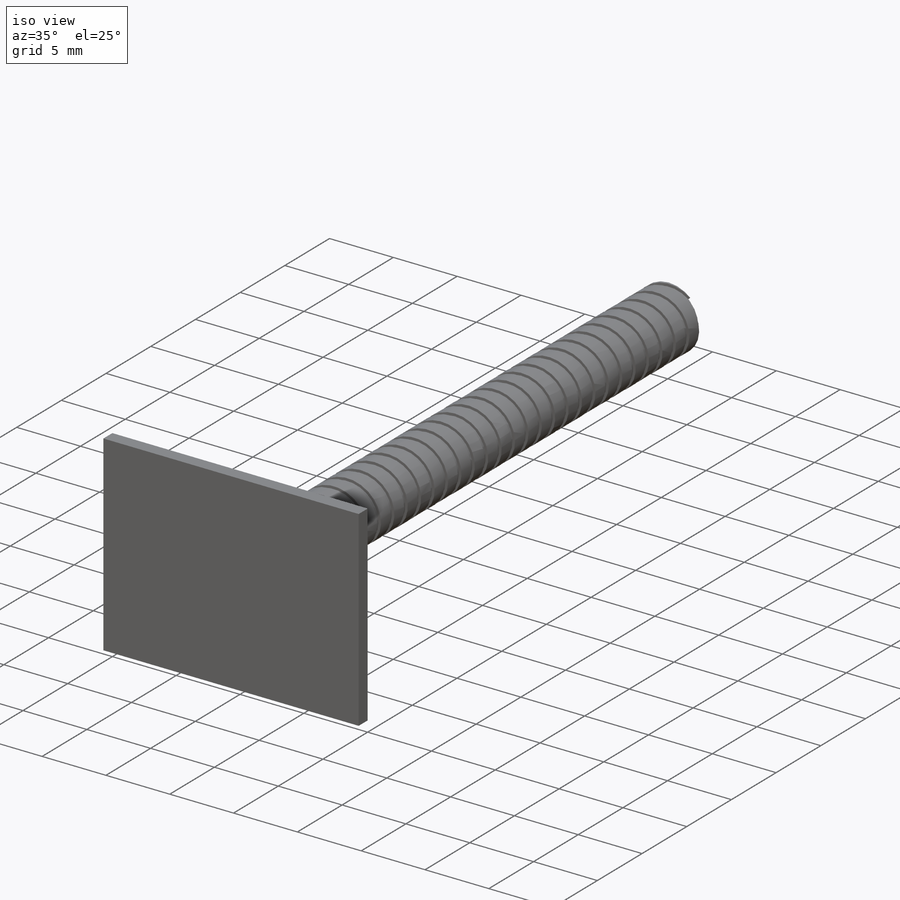
[diagram: iso view]
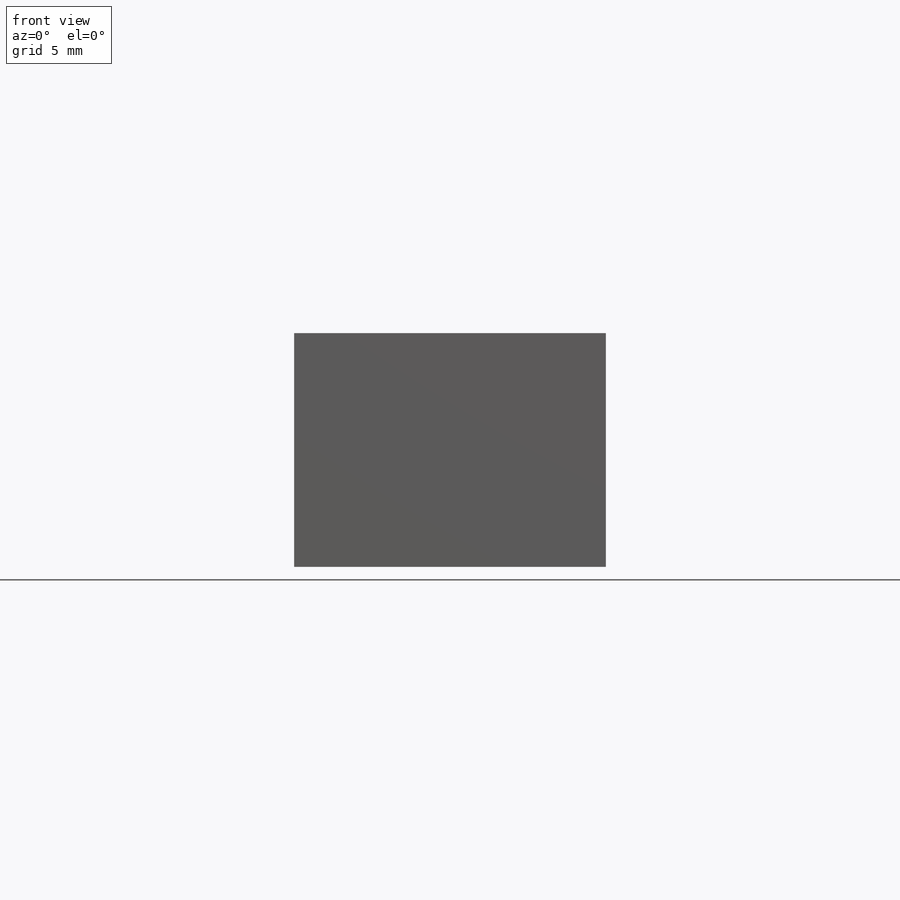
[diagram: front view]
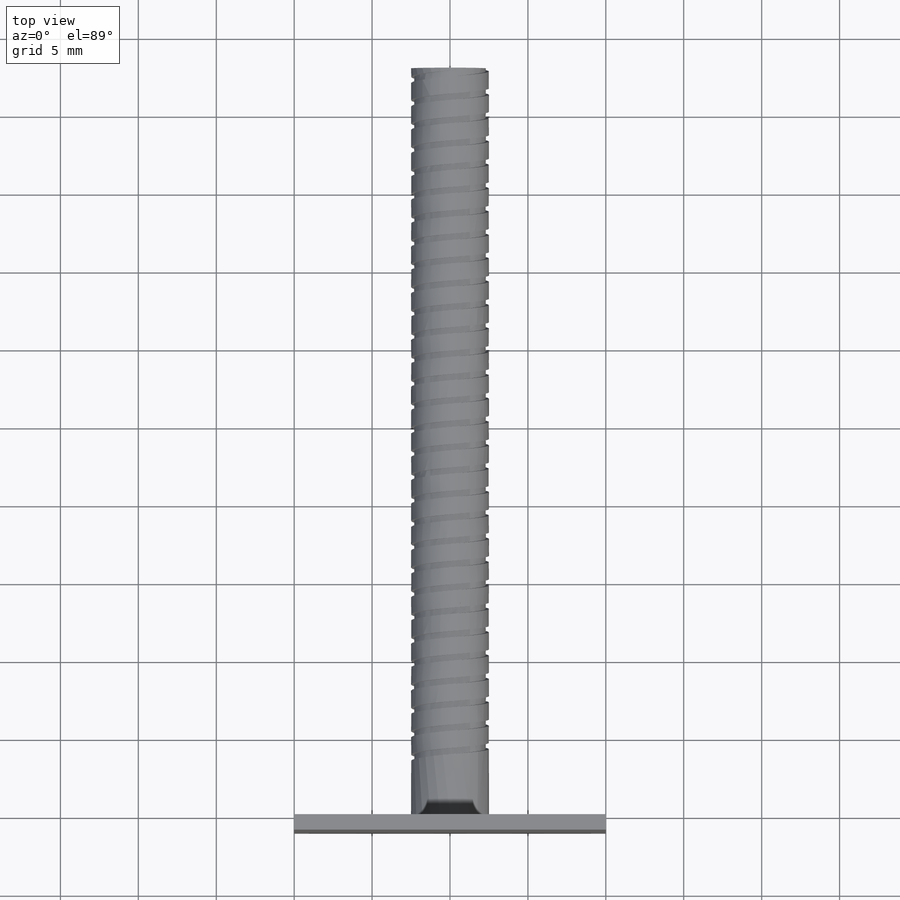
[diagram: top view]
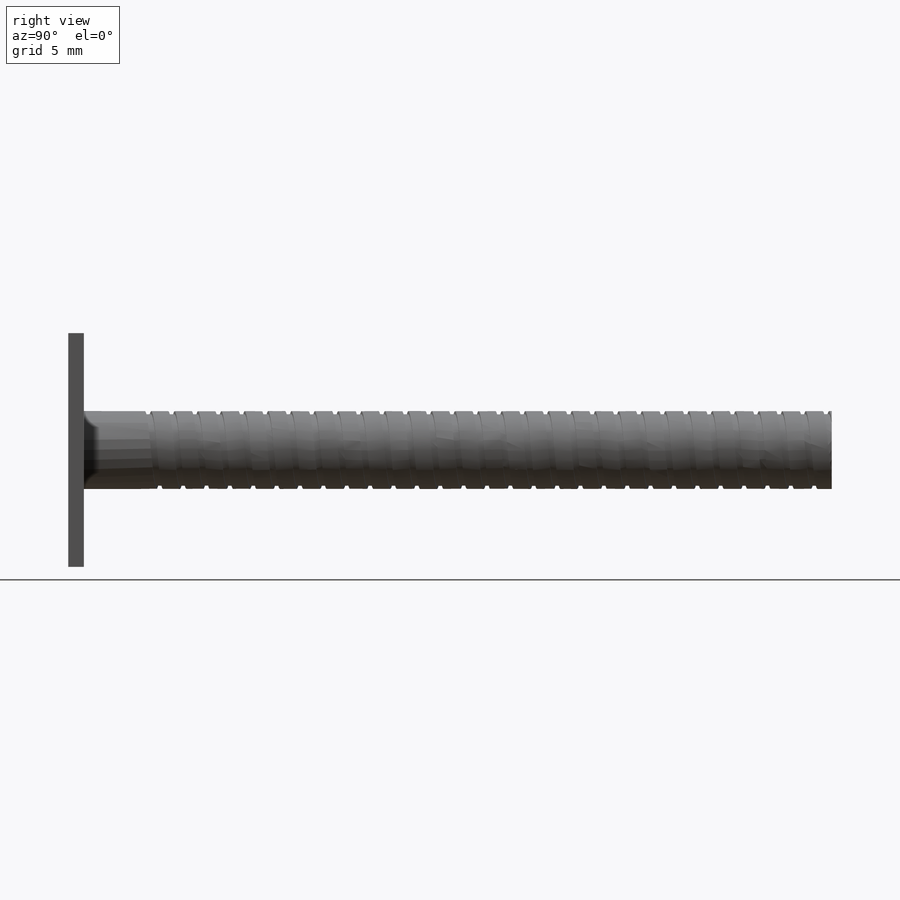
[diagram: right view]
SOLIDWORKS PART (.sldprt)
format: sldprt  version: not decoded by parser v0  size: 610,816 bytes
history: native  units: mm
features: sketch x5, extrude x3, material x1, helix x1, sweep x1 (+13 scaffold rows collapsed)
feature tree (24):
  scaffold x13  (default folders/planes/origin — collapsed)
  material  "Material <not specified>"
  sketch  "Sketch1"  dims[D1=20.0mm D2=15.0mm]
  extrude  "Extrude1"  Depth=1mm
  sketch  "Sketch2"  dims[D1=5.0mm]
  extrude  "Extrude2"  Depth=48mm
  sketch  "Sketch4"
  helix  "Helix/Spiral1"  Pitch=45mm
  sketch  "Sketch5"  dims[D1=0.4mm D2=0.4mm]
  sweep  "Cut-Sweep2"
  sketch  "Sketch6"  dims[D1=2.75mm]
  extrude  "Extrude3"  Depth=0.1mm
decode coverage: 8 of 10 modeling features carry decoded parameters
note: suppression state not decoded; provenance and decode notes live in map.json
